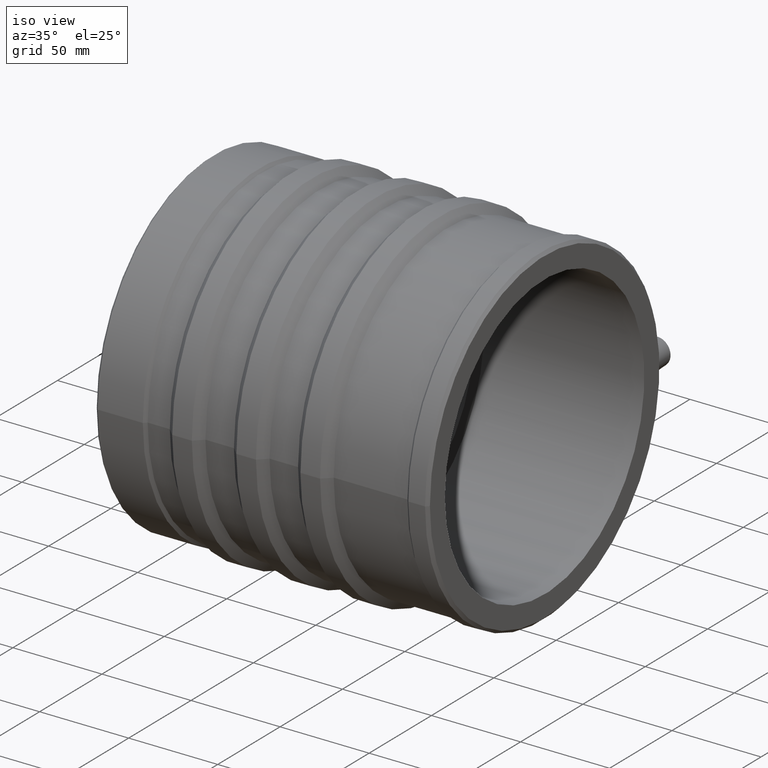
[diagram: clean part render]
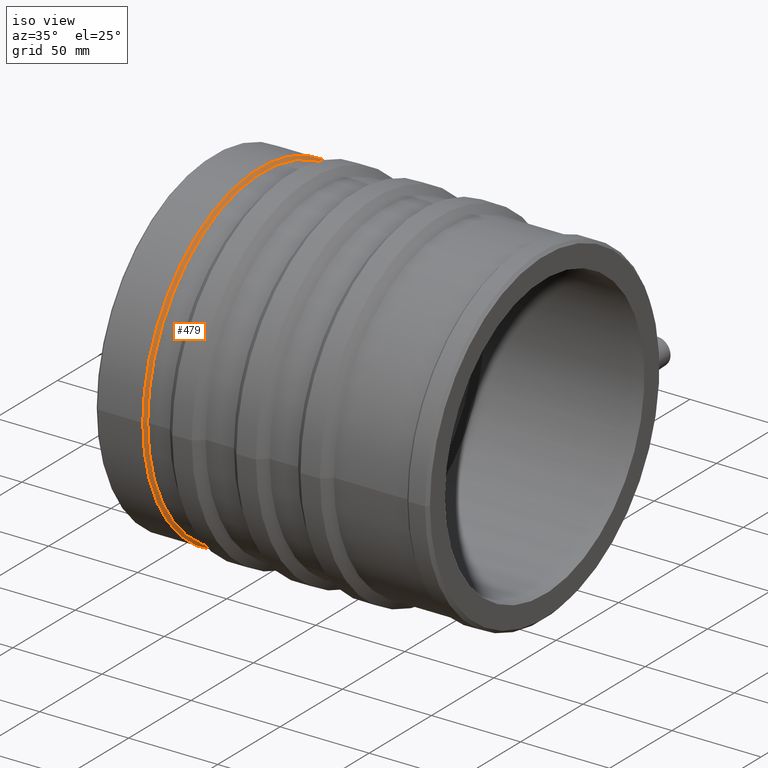
[diagram: same view with one face highlighted and labeled with its STEP entity id]
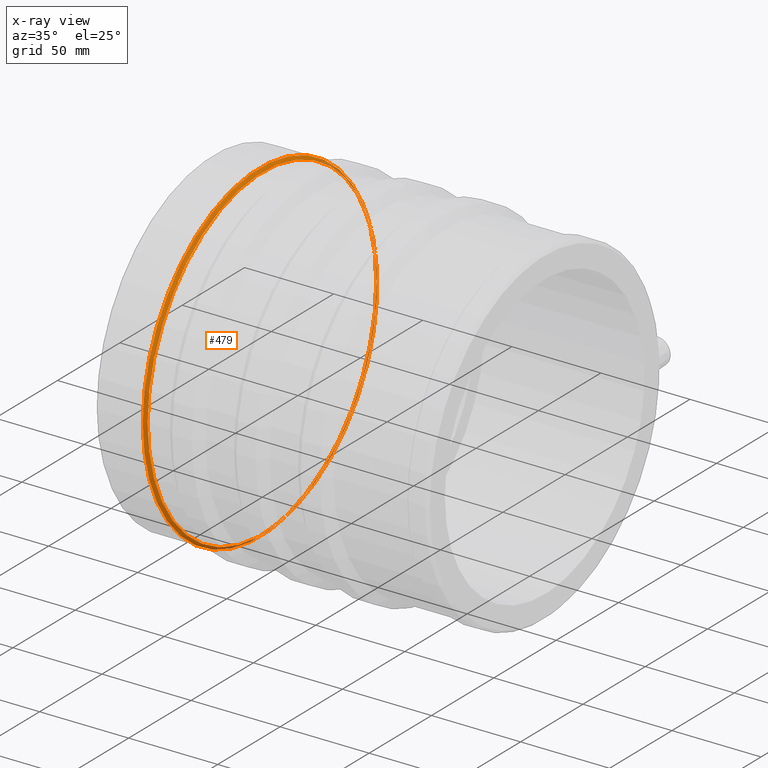
[diagram: x-ray of the same camera — body ghosted, the highlighted face saturated]
A machine part, iso view. The second image highlights one B-rep face of the part: STEP entity #479.
The next image is the same camera in x-ray: the body ghosted, the highlighted face saturated — about 18% of this face is hidden behind the body in this view.
In plain terms, the highlighted conical surface has half-angle 45 deg.
Its self-contained STEP definition (entity closure, byte-faithful):
#35=CONICAL_SURFACE('',#557,92.8025,44.9999999999998);
#69=FACE_BOUND('',#200,.T.);
#126=FACE_OUTER_BOUND('',#199,.T.);
#199=EDGE_LOOP('',(#422));
#200=EDGE_LOOP('',(#423));
#243=CIRCLE('',#556,92.);
#244=CIRCLE('',#558,93.605);
#286=VERTEX_POINT('',#930);
#287=VERTEX_POINT('',#933);
#333=EDGE_CURVE('',#286,#286,#243,.T.);
#334=EDGE_CURVE('',#287,#287,#244,.T.);
#422=ORIENTED_EDGE('',*,*,#334,.F.);
#423=ORIENTED_EDGE('',*,*,#333,.T.);
#479=ADVANCED_FACE('',(#126,#69),#35,.T.);
#556=AXIS2_PLACEMENT_3D('',#931,#708,#709);
#557=AXIS2_PLACEMENT_3D('',#932,#710,#711);
#558=AXIS2_PLACEMENT_3D('',#934,#712,#713);
#708=DIRECTION('center_axis',(-1.,-1.83697019872103E-16,0.));
#709=DIRECTION('ref_axis',(0.,0.,1.));
#710=DIRECTION('center_axis',(-1.,-1.83697019872103E-16,0.));
#711=DIRECTION('ref_axis',(1.80411241501588E-16,-1.,0.));
#712=DIRECTION('center_axis',(-1.,-1.83697019872103E-16,0.));
#713=DIRECTION('ref_axis',(0.,0.,1.));
#930=CARTESIAN_POINT('',(-64.945,-92.,0.));
#931=CARTESIAN_POINT('Origin',(-64.945,5.2454684024479E-15,0.));
#932=CARTESIAN_POINT('Origin',(-65.7475,5.09805154400054E-15,0.));
#933=CARTESIAN_POINT('',(-66.55,-93.605,0.));
#934=CARTESIAN_POINT('Origin',(-66.55,4.95063468555317E-15,0.));